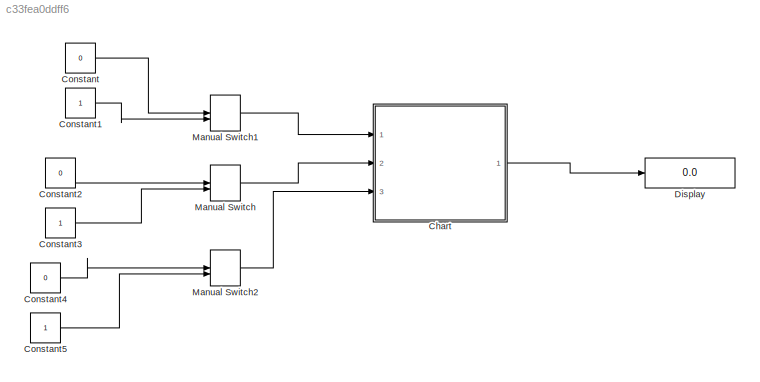
MODEL slx_c33fea0ddff6
KIND model
CONFIG AbsTol = auto
CONFIG FixedStep = auto
CONFIG MaxStep = auto
CONFIG MinStep = auto
CONFIG RelTol = 1e-3
CONFIG SampleTimeConstraint = Unconstrained
CONFIG Solver = VariableStepAuto
CONFIG SolverMode = Auto
CONFIG SolverName = VariableStepAuto
CONFIG StartTime = 0.0
CONFIG StopTime = INF
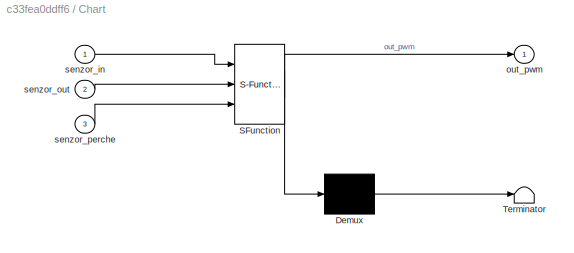
BLOCK [SubSystem] Chart
  ErrorFcn = Stateflow.Translate.translate
  PermitHierarchicalResolution = ExplicitOnly
  Ports = [3, 1]
  RequestExecContextInheritance = off
  SFBlockType = Chart
  TreatAsAtomicUnit = on
  Variant = off
BLOCK [Demux] Chart/ Demux 
  Outputs = 1
  Ports = [1, 1]
BLOCK [S-Function] Chart/ SFunction 
  EnableBusSupport = off
  FunctionName = sf_sfun
  PortCounts = [3 2]
  Ports = [3, 2]
  SFunctionDeploymentMode = off
  Tag = Stateflow S-Function untitled1 3
BLOCK [Terminator] Chart/ Terminator 
BLOCK [Outport] Chart/out_pwm
  IconDisplay = Port number
BLOCK [Inport] Chart/senzor_in
  IconDisplay = Port number
BLOCK [Inport] Chart/senzor_out
  IconDisplay = Port number
  Port = 2
BLOCK [Inport] Chart/senzor_perche
  IconDisplay = Port number
  Port = 3
BLOCK [Constant] Constant
  Value = 0
BLOCK [Constant] Constant1
BLOCK [Constant] Constant2
  Value = 0
BLOCK [Constant] Constant3
BLOCK [Constant] Constant4
  Value = 0
BLOCK [Constant] Constant5
BLOCK [Display] Display
  Decimation = 1
  Ports = [1]
BLOCK [ManualSwitch] Manual Switch
BLOCK [ManualSwitch] Manual Switch1
BLOCK [ManualSwitch] Manual Switch2
LINE Chart:1 -> Display:1
LINE Constant1:1 -> Manual Switch1:2
LINE Constant2:1 -> Manual Switch:1
LINE Constant3:1 -> Manual Switch:2
LINE Constant4:1 -> Manual Switch2:1
LINE Constant5:1 -> Manual Switch2:2
LINE Constant:1 -> Manual Switch1:1
LINE Manual Switch1:1 -> Chart:1
LINE Manual Switch2:1 -> Chart:3
LINE Manual Switch:1 -> Chart:2
CHART Chart states=4 transitions=5
  STATE_LABEL 'Init'
  STATE_LABEL 'OFF\nentry: in: out_pwm=0;\n'
  STATE_LABEL 'ON\nentry: in:out_pwm=1;\n'
  STATE_LABEL 'Switch_state\nentry: in:count=0;\n in:count = count + 1;'
